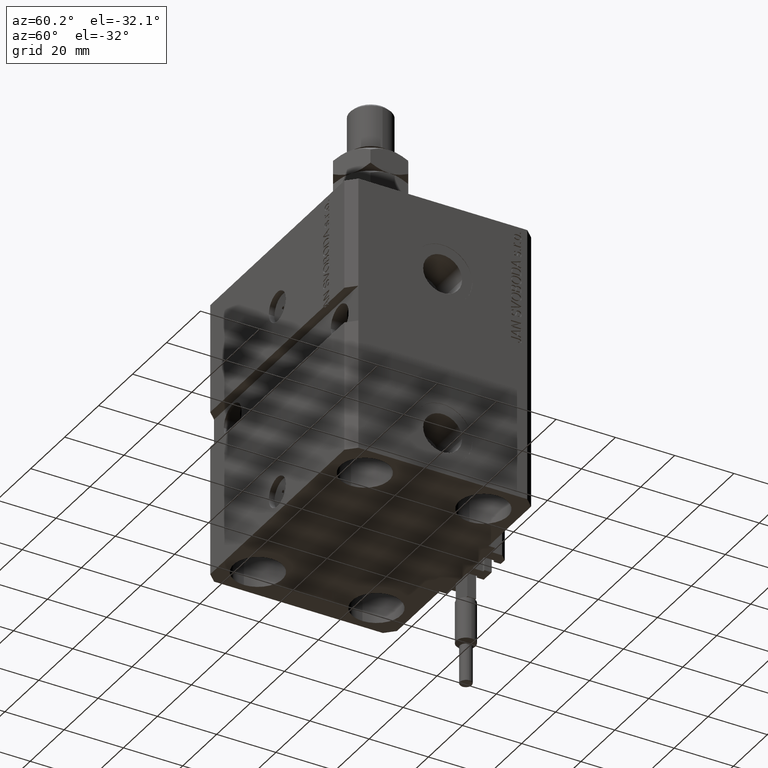
[diagram: clean part render]
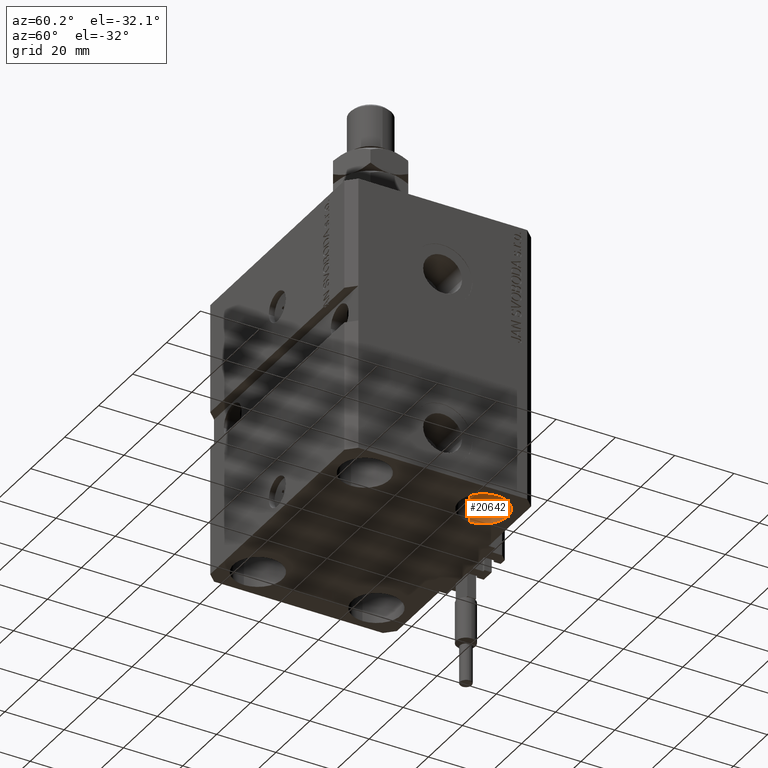
[diagram: same view with one face highlighted and labeled with its STEP entity id]
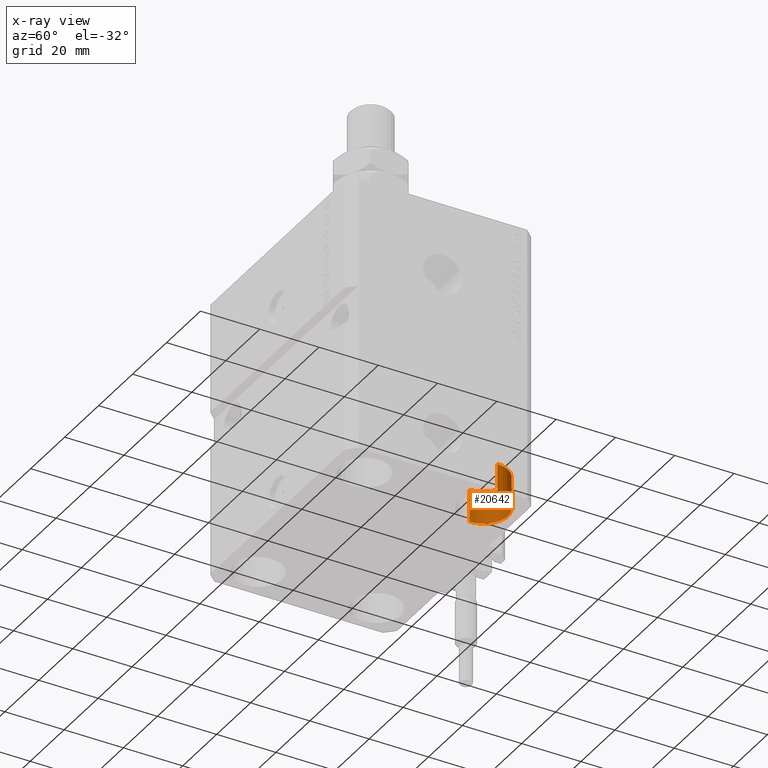
[diagram: x-ray of the same camera — body ghosted, the highlighted face saturated]
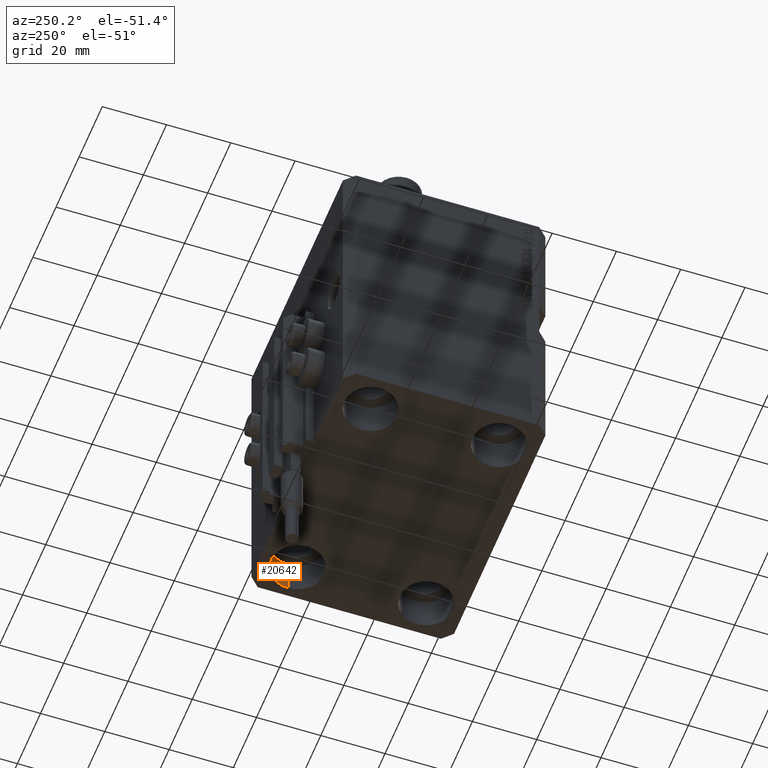
[diagram: same view with one face highlighted and labeled with its STEP entity id]
A machine part, auxiliary view. The second image highlights one B-rep face of the part: STEP entity #20642.
The next image is the same camera in x-ray: the body ghosted, the highlighted face saturated — about 0% of this face is hidden behind the body in this view.
A second angle (auxiliary view) of the same face is appended — the face is thin or edge-on in the first view.
In plain terms, the highlighted cylindrical surface (edge-blend (fillet) strip) has radius 8.25 mm, axis along (-0, -0, -1).
Its self-contained STEP definition (entity closure, byte-faithful):
#690 = ORIENTED_EDGE ( 'NONE', *, *, #28529, .T. ) ;
#1713 = CYLINDRICAL_SURFACE ( 'NONE', #22426, 8.249999999999996447 ) ;
#2537 = DIRECTION ( 'NONE',  ( -0.000000000000000000, -0.000000000000000000, -1.000000000000000000 ) ) ;
#3198 = DIRECTION ( 'NONE',  ( -0.000000000000000000, -0.000000000000000000, 1.000000000000000000 ) ) ;
#6499 = FACE_OUTER_BOUND ( 'NONE', #48356, .T. ) ;
#6964 = ORIENTED_EDGE ( 'NONE', *, *, #15640, .T. ) ;
#10264 = DIRECTION ( 'NONE',  ( 1.000000000000000000, 0.000000000000000000, 0.000000000000000000 ) ) ;
#10364 = LINE ( 'NONE', #21960, #15952 ) ;
#10441 = LINE ( 'NONE', #25309, #20096 ) ;
#15640 = EDGE_CURVE ( 'NONE', #30651, #49328, #38392, .T. ) ;
#15952 = VECTOR ( 'NONE', #2537, 1000.000000000000000 ) ;
#17073 = CARTESIAN_POINT ( 'NONE',  ( 31.50000000000000000, 20.00000000000001066, -82.00000000000000000 ) ) ;
#20096 = VECTOR ( 'NONE', #36959, 1000.000000000000000 ) ;
#20642 = ADVANCED_FACE ( 'NONE', ( #6499 ), #1713, .F. ) ;
#21001 = ORIENTED_EDGE ( 'NONE', *, *, #21330, .F. ) ;
#21330 = EDGE_CURVE ( 'NONE', #30651, #44794, #10364, .T. ) ;
#21960 = CARTESIAN_POINT ( 'NONE',  ( 39.74999999999999289, 20.00000000000001066, -82.00000000000000000 ) ) ;
#22426 = AXIS2_PLACEMENT_3D ( 'NONE', #17073, #28463, #44158 ) ;
#23032 = AXIS2_PLACEMENT_3D ( 'NONE', #23588, #39018, #27869 ) ;
#23542 = VERTEX_POINT ( 'NONE', #35545 ) ;
#23588 = CARTESIAN_POINT ( 'NONE',  ( 31.50000000000000000, 20.00000000000001066, -82.00000000000000000 ) ) ;
#24523 = CIRCLE ( 'NONE', #43147, 8.249999999999992895 ) ;
#25309 = CARTESIAN_POINT ( 'NONE',  ( 23.25000000000000355, 20.00000000000001066, -82.00000000000000000 ) ) ;
#27869 = DIRECTION ( 'NONE',  ( 1.000000000000000000, 0.000000000000000000, 0.000000000000000000 ) ) ;
#28097 = CARTESIAN_POINT ( 'NONE',  ( 39.74999999999999289, 20.00000000000001066, -82.00000000000000000 ) ) ;
#28463 = DIRECTION ( 'NONE',  ( -0.000000000000000000, -0.000000000000000000, -1.000000000000000000 ) ) ;
#28529 = EDGE_CURVE ( 'NONE', #49328, #23542, #10441, .T. ) ;
#29710 = CARTESIAN_POINT ( 'NONE',  ( 39.74999999999999289, 20.00000000000001066, -93.00000000000000000 ) ) ;
#30651 = VERTEX_POINT ( 'NONE', #28097 ) ;
#33320 = CARTESIAN_POINT ( 'NONE',  ( 23.25000000000000355, 20.00000000000001066, -82.00000000000000000 ) ) ;
#35545 = CARTESIAN_POINT ( 'NONE',  ( 23.25000000000000355, 20.00000000000001066, -93.00000000000000000 ) ) ;
#36959 = DIRECTION ( 'NONE',  ( -0.000000000000000000, -0.000000000000000000, -1.000000000000000000 ) ) ;
#38392 = CIRCLE ( 'NONE', #23032, 8.249999999999992895 ) ;
#39018 = DIRECTION ( 'NONE',  ( -0.000000000000000000, -0.000000000000000000, 1.000000000000000000 ) ) ;
#41609 = CARTESIAN_POINT ( 'NONE',  ( 31.50000000000000000, 20.00000000000001066, -93.00000000000000000 ) ) ;
#43147 = AXIS2_PLACEMENT_3D ( 'NONE', #41609, #3198, #10264 ) ;
#44158 = DIRECTION ( 'NONE',  ( -1.000000000000000000, 0.000000000000000000, 0.000000000000000000 ) ) ;
#44794 = VERTEX_POINT ( 'NONE', #29710 ) ;
#47108 = EDGE_CURVE ( 'NONE', #44794, #23542, #24523, .T. ) ;
#47755 = ORIENTED_EDGE ( 'NONE', *, *, #47108, .F. ) ;
#48356 = EDGE_LOOP ( 'NONE', ( #21001, #6964, #690, #47755 ) ) ;
#49328 = VERTEX_POINT ( 'NONE', #33320 ) ;